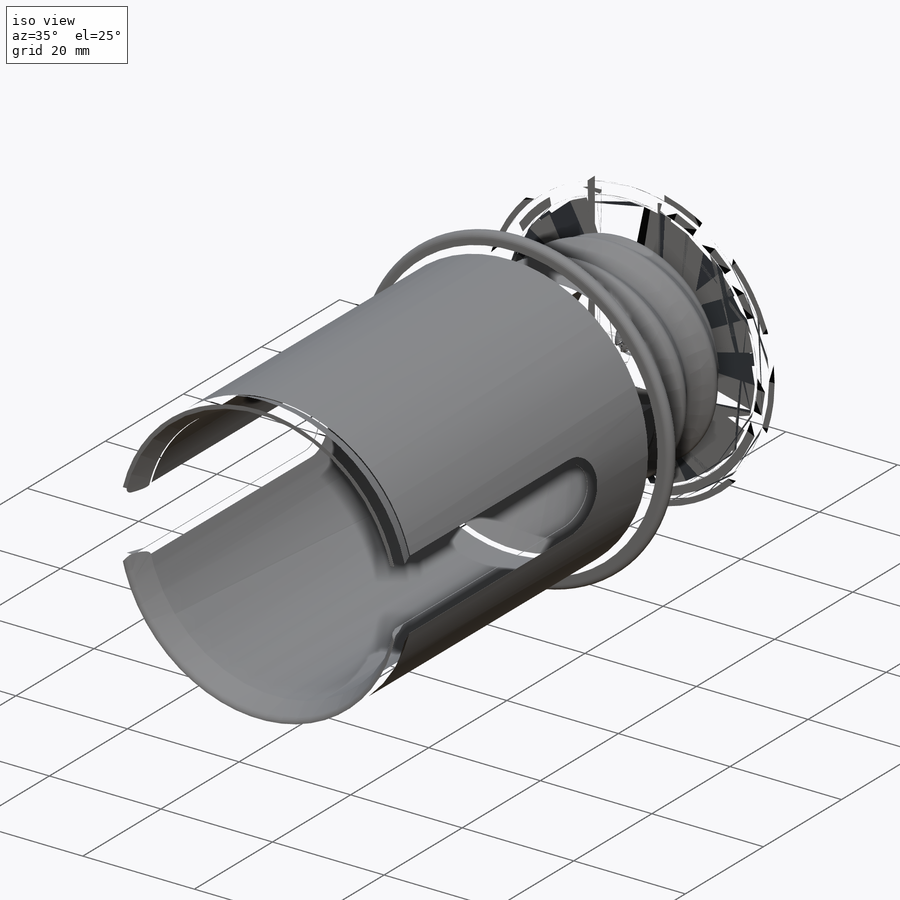
[diagram: iso view]
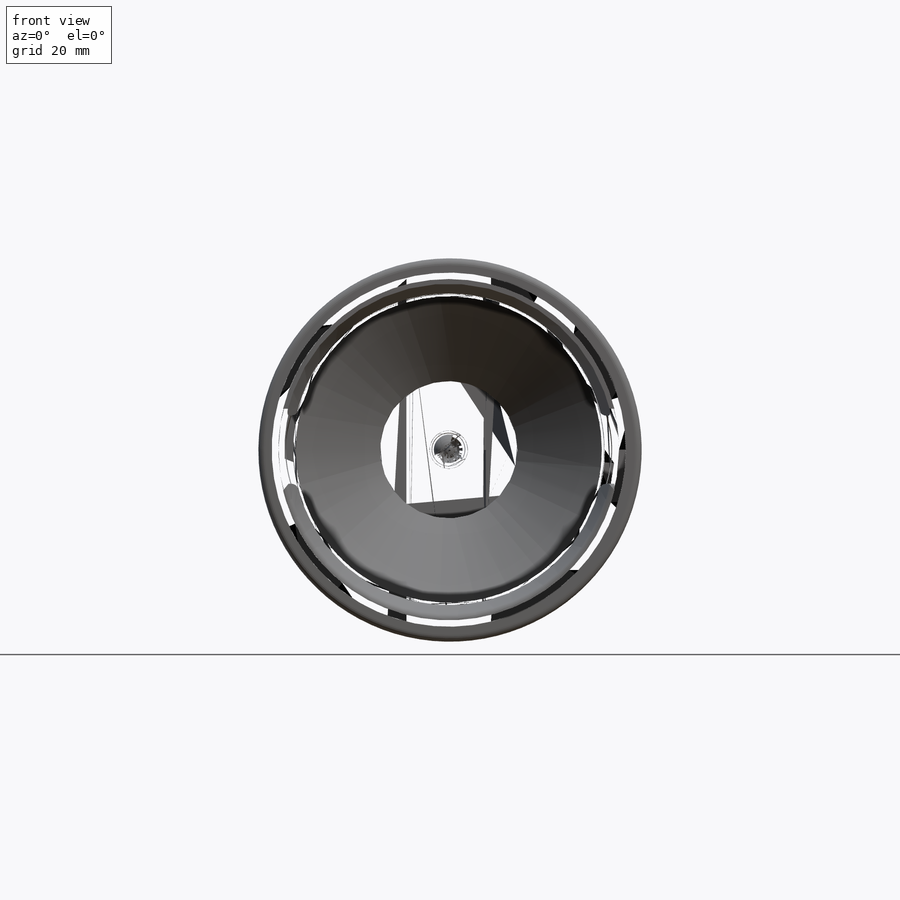
[diagram: front view]
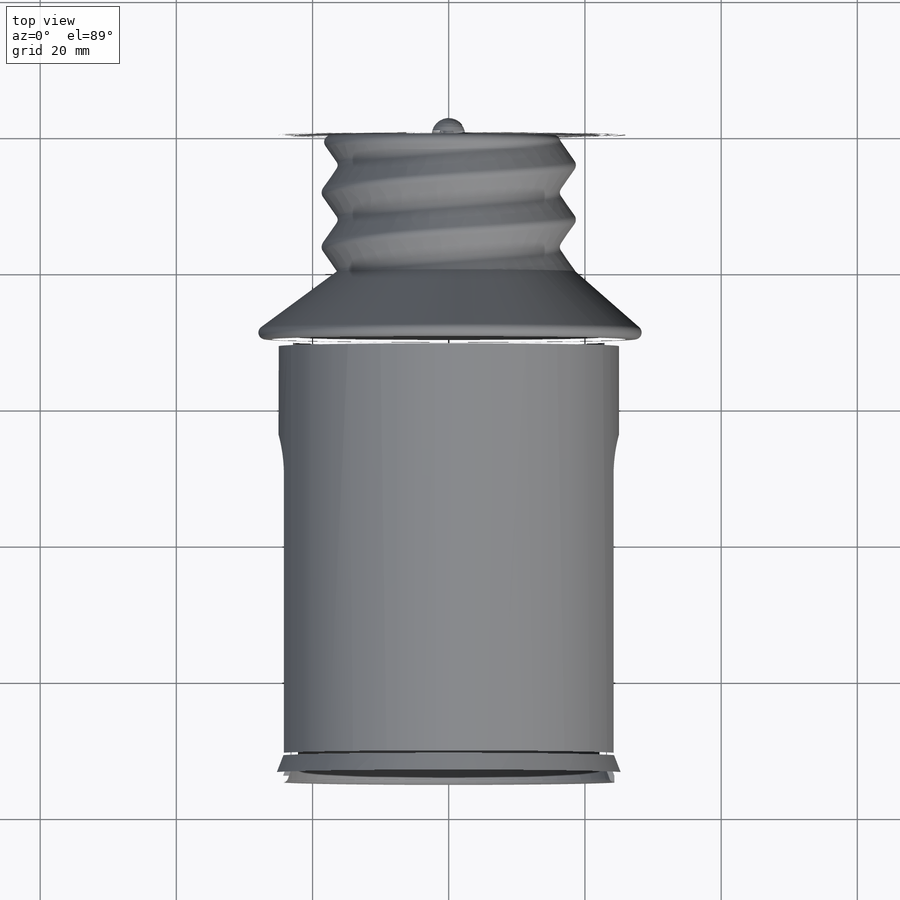
[diagram: top view]
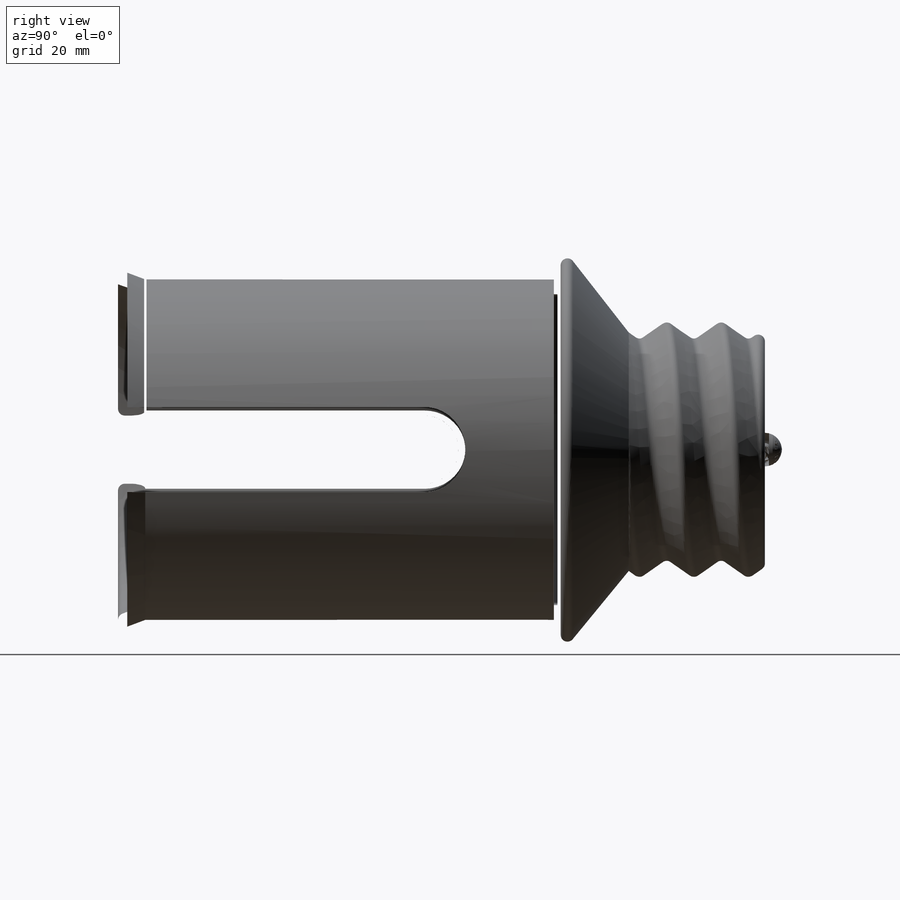
[diagram: right view]
SOLIDWORKS PART (.sldprt)
format: sldprt  version: not decoded by parser v0  size: 1,187,328 bytes
history: native  units: mm
features: sketch x10, fillet x5, extrude x2, plane x2, material x1, helix x1, sweep x1, cut_revolve x1, cut_extrude x1 (+13 scaffold rows collapsed)
feature tree (37):
  scaffold x13  (default folders/planes/origin — collapsed)
  material  "ABS"
  sketch  "Sketch1"  dims[D1=40.0mm]
  extrude  "Boss-Extrude1"  Depth=20mm
  sketch  "Sketch3"  dims[c1.D1=~1.059464mm c2.D1=90.0deg c3.D1=~0.964454mm c4.D1=110.0deg c4.D2=3.9mm c4.D3=20.0mm c4.D4=7.8mm]
  sketch  "Sketch4"  dims[D1=0.0mm]
  helix  "Helix/Spiral1"  Pitch=32mm
  sweep  "Cut-Sweep2"
  fillet  "Fillet1"  Radius=1mm
  fillet  "Fillet2"  Radius=1mm
  fillet  "Fillet3"  Radius=1mm
  sketch  "Sketch5"  dims[D1=0.0mm]
  plane  "Plane1"  Offset=10mm
  sketch  "Sketch6"  dims[D1=60.0mm]
  fillet  "Fillet4"  Radius=1mm
  sketch  "Sketch7"  dims[D1=50.0mm]
  extrude  "Boss-Extrude2"  Depth=61mm
  plane  "Plane2"  Offset=4mm
  sketch  "Sketch10"  dims[D1=0.0mm]
  sketch  "Sketch9"  dims[D1=53.0mm]
  sketch  "Sketch12"  dims[c1.D1=5.0mm c2.D1=~3.012788deg c3.D1=2.0mm]
  cut_revolve  "Cut-Revolve1"  Angle=360deg
  sketch  "Sketch11"  dims[c1.D1=~8.610868mm c1.D2=5.0mm c2.D1=20.0mm c2.D3=25.0mm c2.D4=25.0mm]
  cut_extrude  "Cut-Extrude1"  Depth=61mm
  fillet  "Fillet5"  Radius=1mm
decode coverage: 20 of 21 modeling features carry decoded parameters
note: ~ marks probable driven/reference dimensions
note: suppression state not decoded; provenance and decode notes live in map.json
